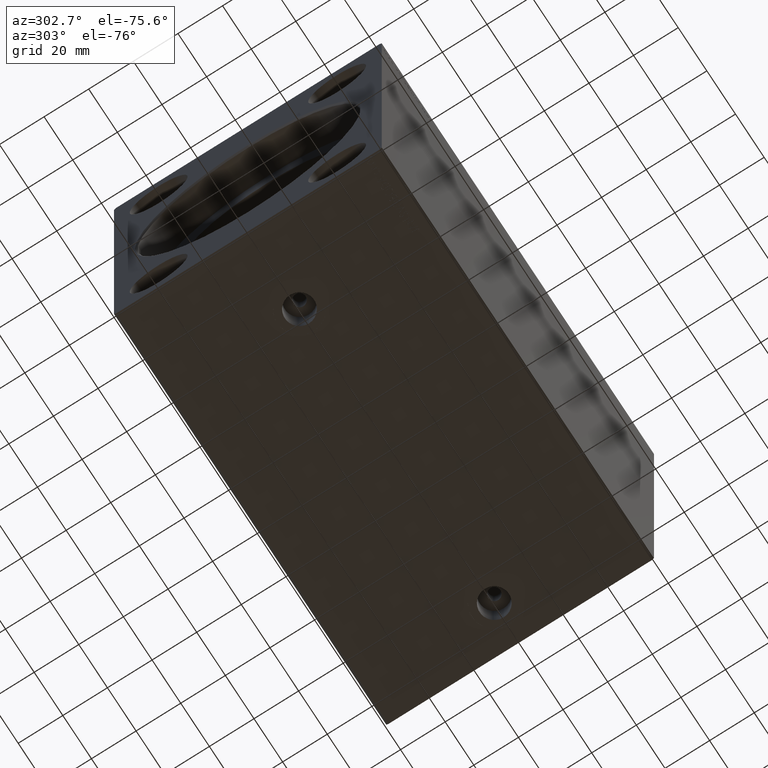
[diagram: clean part render]
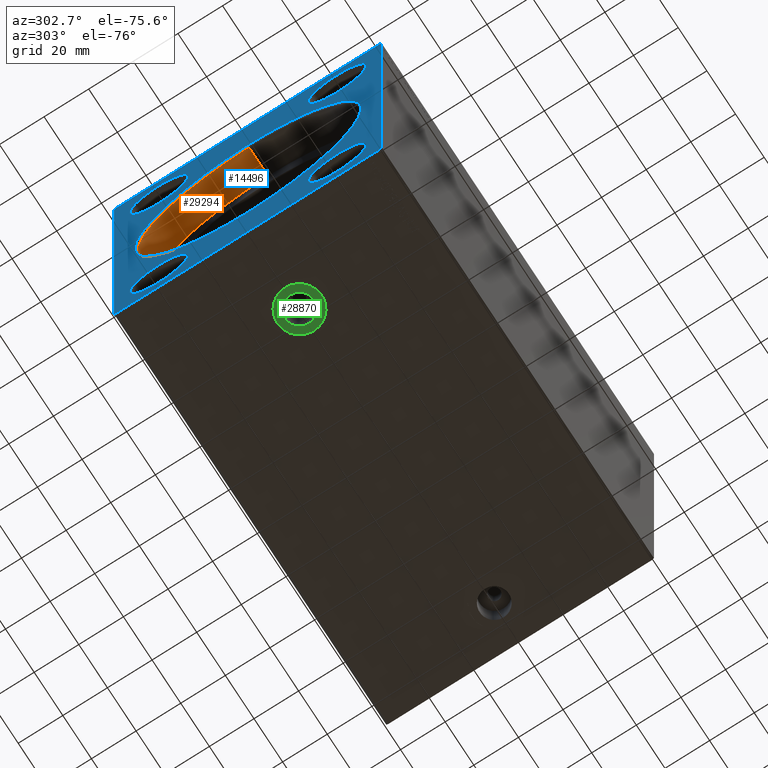
[diagram: same view with three faces highlighted in distinct colors, each labeled with its STEP entity id]
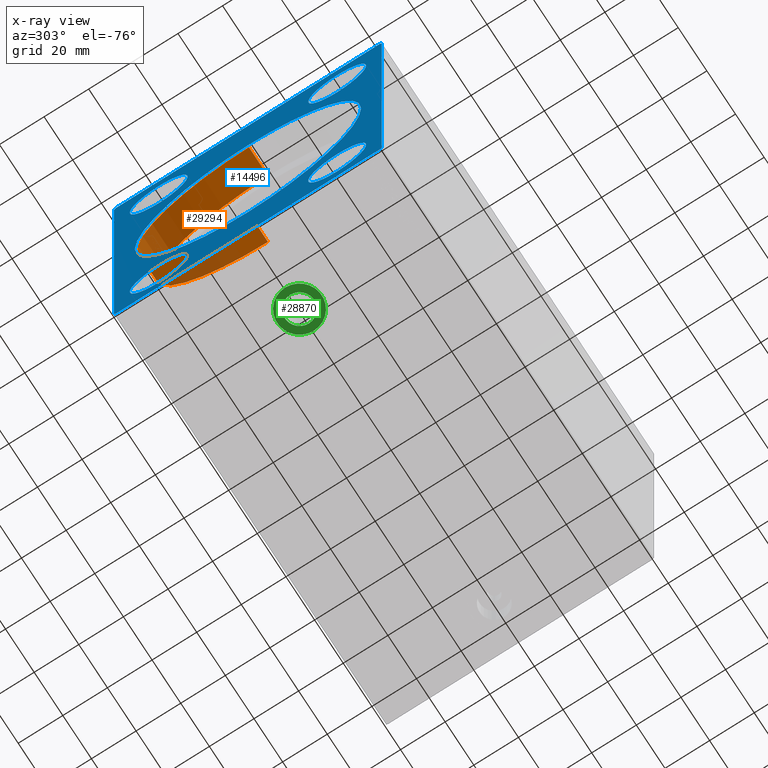
[diagram: x-ray of the same camera — body ghosted, the three highlighted faces saturated]
A machine part, auxiliary view with three faces highlighted in distinct colors.
The next image is the same camera in x-ray (body ghosted, the three faces saturated) — at least one of them is partly hidden behind the body in this view.
Their STEP definitions:

[orange] entity #29294 — the highlighted cylindrical surface (partial cylindrical patch) has radius 50 mm, axis along (-1, -0, -0).
#4177 = AXIS2_PLACEMENT_3D ( 'NONE', #25122, #41657, #8784 ) ;
#6242 = AXIS2_PLACEMENT_3D ( 'NONE', #8359, #38013, #15886 ) ;
#7658 = CARTESIAN_POINT ( 'NONE',  ( 0.6999999999999992895, 6.123233995736766085E-15, -50.00000000000000000 ) ) ;
#7964 = DIRECTION ( 'NONE',  ( -1.000000000000000000, 0.000000000000000000, 0.000000000000000000 ) ) ;
#8359 = CARTESIAN_POINT ( 'NONE',  ( 0.6999999999999992895, 0.000000000000000000, 0.000000000000000000 ) ) ;
#8761 = CARTESIAN_POINT ( 'NONE',  ( 14.00000000000000000, 6.123233995736766085E-15, -50.00000000000000000 ) ) ;
#8784 = DIRECTION ( 'NONE',  ( 0.000000000000000000, 0.000000000000000000, 1.000000000000000000 ) ) ;
#8843 = CARTESIAN_POINT ( 'NONE',  ( 14.00000000000000000, 6.123233995736766085E-15, -50.00000000000000000 ) ) ;
#14068 = VERTEX_POINT ( 'NONE', #38146 ) ;
#14689 = CARTESIAN_POINT ( 'NONE',  ( 14.00000000000000000, 0.000000000000000000, 50.00000000000000000 ) ) ;
#15243 = CYLINDRICAL_SURFACE ( 'NONE', #4177, 50.00000000000000000 ) ;
#15668 = FACE_OUTER_BOUND ( 'NONE', #26869, .T. ) ;
#15886 = DIRECTION ( 'NONE',  ( 0.000000000000000000, 0.000000000000000000, -1.000000000000000000 ) ) ;
#16205 = ORIENTED_EDGE ( 'NONE', *, *, #33286, .F. ) ;
#16239 = VERTEX_POINT ( 'NONE', #8761 ) ;
#16992 = DIRECTION ( 'NONE',  ( -1.000000000000000000, -0.000000000000000000, -0.000000000000000000 ) ) ;
#18571 = CARTESIAN_POINT ( 'NONE',  ( 0.6999999999999992895, 0.000000000000000000, 50.00000000000000000 ) ) ;
#19288 = CIRCLE ( 'NONE', #6242, 50.00000000000000000 ) ;
#21065 = VERTEX_POINT ( 'NONE', #7658 ) ;
#21446 = ORIENTED_EDGE ( 'NONE', *, *, #25747, .F. ) ;
#22213 = VERTEX_POINT ( 'NONE', #18571 ) ;
#23246 = EDGE_CURVE ( 'NONE', #14068, #22213, #40487, .T. ) ;
#23950 = DIRECTION ( 'NONE',  ( -1.000000000000000000, -0.000000000000000000, -0.000000000000000000 ) ) ;
#25122 = CARTESIAN_POINT ( 'NONE',  ( 14.00000000000000000, 0.000000000000000000, 0.000000000000000000 ) ) ;
#25178 = LINE ( 'NONE', #8843, #40498 ) ;
#25747 = EDGE_CURVE ( 'NONE', #16239, #21065, #25178, .T. ) ;
#26156 = AXIS2_PLACEMENT_3D ( 'NONE', #33794, #7964, #27341 ) ;
#26869 = EDGE_LOOP ( 'NONE', ( #21446, #16205, #33239, #34878 ) ) ;
#27341 = DIRECTION ( 'NONE',  ( 0.000000000000000000, 0.000000000000000000, 1.000000000000000000 ) ) ;
#29260 = EDGE_CURVE ( 'NONE', #22213, #21065, #19288, .T. ) ;
#29294 = ADVANCED_FACE ( 'NONE', ( #15668 ), #15243, .F. ) ;
#32902 = VECTOR ( 'NONE', #23950, 1000.000000000000000 ) ;
#33239 = ORIENTED_EDGE ( 'NONE', *, *, #23246, .T. ) ;
#33286 = EDGE_CURVE ( 'NONE', #14068, #16239, #34462, .T. ) ;
#33794 = CARTESIAN_POINT ( 'NONE',  ( 14.00000000000000000, 0.000000000000000000, 0.000000000000000000 ) ) ;
#34462 = CIRCLE ( 'NONE', #26156, 50.00000000000000000 ) ;
#34878 = ORIENTED_EDGE ( 'NONE', *, *, #29260, .T. ) ;
#38013 = DIRECTION ( 'NONE',  ( -1.000000000000000000, 0.000000000000000000, 0.000000000000000000 ) ) ;
#38146 = CARTESIAN_POINT ( 'NONE',  ( 14.00000000000000000, 0.000000000000000000, 50.00000000000000000 ) ) ;
#40487 = LINE ( 'NONE', #14689, #32902 ) ;
#40498 = VECTOR ( 'NONE', #16992, 1000.000000000000000 ) ;
#41657 = DIRECTION ( 'NONE',  ( -1.000000000000000000, -0.000000000000000000, -0.000000000000000000 ) ) ;

[blue] entity #14496 — the highlighted planar face has unit normal (1, 0, 0).
#44 = VERTEX_POINT ( 'NONE', #40766 ) ;
#814 = CARTESIAN_POINT ( 'NONE',  ( 0.000000000000000000, -39.99999999999999289, -59.99999999999999289 ) ) ;
#1034 = EDGE_CURVE ( 'NONE', #26613, #17957, #18048, .T. ) ;
#1849 = CIRCLE ( 'NONE', #23118, 12.99999999999999112 ) ;
#2084 = ORIENTED_EDGE ( 'NONE', *, *, #41011, .F. ) ;
#2271 = CARTESIAN_POINT ( 'NONE',  ( 0.000000000000000000, 6.208959271677078796E-15, -50.69999999999999574 ) ) ;
#2746 = EDGE_CURVE ( 'NONE', #23077, #5207, #26099, .T. ) ;
#2938 = EDGE_CURVE ( 'NONE', #12563, #6441, #25710, .T. ) ;
#2958 = CARTESIAN_POINT ( 'NONE',  ( 0.000000000000000000, 0.000000000000000000, 0.000000000000000000 ) ) ;
#4116 = DIRECTION ( 'NONE',  ( 0.000000000000000000, 0.000000000000000000, 1.000000000000000000 ) ) ;
#4333 = AXIS2_PLACEMENT_3D ( 'NONE', #15793, #9338, #14362 ) ;
#4878 = CARTESIAN_POINT ( 'NONE',  ( 0.000000000000000000, 40.00000000000000711, 73.00000000000002842 ) ) ;
#5207 = VERTEX_POINT ( 'NONE', #10925 ) ;
#5262 = CARTESIAN_POINT ( 'NONE',  ( 0.000000000000000000, -59.00000000000001421, 79.99999999999998579 ) ) ;
#5603 = CARTESIAN_POINT ( 'NONE',  ( 0.000000000000000000, -39.99999999999999289, -47.00000000000000000 ) ) ;
#5609 = DIRECTION ( 'NONE',  ( 0.000000000000000000, 0.000000000000000000, 1.000000000000000000 ) ) ;
#5884 = CARTESIAN_POINT ( 'NONE',  ( 0.000000000000000000, -59.00000000000001421, 79.99999999999998579 ) ) ;
#6082 = DIRECTION ( 'NONE',  ( 0.000000000000000000, 0.000000000000000000, 1.000000000000000000 ) ) ;
#6318 = CARTESIAN_POINT ( 'NONE',  ( 0.000000000000000000, 40.00000000000000711, -47.00000000000000000 ) ) ;
#6363 = ORIENTED_EDGE ( 'NONE', *, *, #40813, .F. ) ;
#6441 = VERTEX_POINT ( 'NONE', #31944 ) ;
#6903 = CIRCLE ( 'NONE', #36518, 50.69999999999999574 ) ;
#6910 = ORIENTED_EDGE ( 'NONE', *, *, #16671, .F. ) ;
#7300 = VECTOR ( 'NONE', #40196, 1000.000000000000114 ) ;
#7456 = CIRCLE ( 'NONE', #36971, 13.00000000000000533 ) ;
#7788 = VECTOR ( 'NONE', #33190, 1000.000000000000114 ) ;
#8067 = CARTESIAN_POINT ( 'NONE',  ( 0.000000000000000000, -39.99999999999999289, -59.99999999999999289 ) ) ;
#8713 = VERTEX_POINT ( 'NONE', #32379 ) ;
#8738 = CARTESIAN_POINT ( 'NONE',  ( 0.000000000000000000, 59.00000000000000000, -80.00000000000000000 ) ) ;
#9142 = LINE ( 'NONE', #5262, #42317 ) ;
#9151 = ORIENTED_EDGE ( 'NONE', *, *, #25648, .F. ) ;
#9171 = FACE_BOUND ( 'NONE', #22208, .T. ) ;
#9338 = DIRECTION ( 'NONE',  ( 1.000000000000000000, -0.000000000000000000, -0.000000000000000000 ) ) ;
#9928 = DIRECTION ( 'NONE',  ( 0.000000000000000000, 0.000000000000000000, -1.000000000000000000 ) ) ;
#9963 = DIRECTION ( 'NONE',  ( 0.000000000000000000, 0.000000000000000000, -1.000000000000000000 ) ) ;
#10365 = CARTESIAN_POINT ( 'NONE',  ( 0.000000000000000000, 40.00000000000000711, -59.99999999999999289 ) ) ;
#10507 = CARTESIAN_POINT ( 'NONE',  ( 0.000000000000000000, -60.00000000000002132, 78.99999999999998579 ) ) ;
#10730 = ORIENTED_EDGE ( 'NONE', *, *, #1034, .T. ) ;
#10841 = VECTOR ( 'NONE', #20189, 1000.000000000000000 ) ;
#10925 = CARTESIAN_POINT ( 'NONE',  ( 0.000000000000000000, 58.99999999999998579, 80.00000000000000000 ) ) ;
#11050 = CIRCLE ( 'NONE', #34375, 50.69999999999999574 ) ;
#11092 = DIRECTION ( 'NONE',  ( 0.000000000000000000, 0.000000000000000000, -1.000000000000000000 ) ) ;
#12065 = CARTESIAN_POINT ( 'NONE',  ( 0.000000000000000000, -39.99999999999999289, 60.00000000000002132 ) ) ;
#12282 = DIRECTION ( 'NONE',  ( -1.000000000000000000, 0.000000000000000000, 0.000000000000000000 ) ) ;
#12509 = LINE ( 'NONE', #38931, #39140 ) ;
#12563 = VERTEX_POINT ( 'NONE', #28055 ) ;
#12637 = DIRECTION ( 'NONE',  ( 1.000000000000000000, 0.000000000000000000, 0.000000000000000000 ) ) ;
#13176 = ORIENTED_EDGE ( 'NONE', *, *, #2746, .F. ) ;
#13398 = VERTEX_POINT ( 'NONE', #29135 ) ;
#13769 = EDGE_CURVE ( 'NONE', #17134, #25236, #29368, .T. ) ;
#13964 = LINE ( 'NONE', #27912, #31474 ) ;
#14094 = DIRECTION ( 'NONE',  ( 0.000000000000000000, 0.000000000000000000, -1.000000000000000000 ) ) ;
#14320 = DIRECTION ( 'NONE',  ( 0.000000000000000000, 1.000000000000000000, 0.000000000000000000 ) ) ;
#14362 = DIRECTION ( 'NONE',  ( 0.000000000000000000, 0.000000000000000000, -1.000000000000000000 ) ) ;
#14496 = ADVANCED_FACE ( 'NONE', ( #25951, #29394, #31977, #42488, #15622, #9171 ), #27002, .F. ) ;
#14744 = VERTEX_POINT ( 'NONE', #5884 ) ;
#15345 = EDGE_CURVE ( 'NONE', #38272, #13398, #32905, .T. ) ;
#15427 = DIRECTION ( 'NONE',  ( 0.000000000000000000, 0.7071067811865450192, -0.7071067811865500152 ) ) ;
#15622 = FACE_BOUND ( 'NONE', #21479, .T. ) ;
#15675 = AXIS2_PLACEMENT_3D ( 'NONE', #39370, #16382, #9928 ) ;
#15793 = CARTESIAN_POINT ( 'NONE',  ( 0.000000000000000000, 40.00000000000000711, 60.00000000000002132 ) ) ;
#15980 = CARTESIAN_POINT ( 'NONE',  ( 0.000000000000000000, -39.99999999999999289, 60.00000000000002132 ) ) ;
#16382 = DIRECTION ( 'NONE',  ( 1.000000000000000000, -0.000000000000000000, -0.000000000000000000 ) ) ;
#16513 = ORIENTED_EDGE ( 'NONE', *, *, #31435, .F. ) ;
#16538 = EDGE_CURVE ( 'NONE', #40892, #34157, #1849, .T. ) ;
#16671 = EDGE_CURVE ( 'NONE', #14744, #38272, #9142, .T. ) ;
#16882 = EDGE_LOOP ( 'NONE', ( #27597, #33028 ) ) ;
#16894 = CARTESIAN_POINT ( 'NONE',  ( 0.000000000000000000, 0.000000000000000000, 0.000000000000000000 ) ) ;
#17043 = EDGE_CURVE ( 'NONE', #8713, #34117, #28321, .T. ) ;
#17134 = VERTEX_POINT ( 'NONE', #6318 ) ;
#17927 = CARTESIAN_POINT ( 'NONE',  ( 0.000000000000000000, 0.000000000000000000, 50.69999999999999574 ) ) ;
#17957 = VERTEX_POINT ( 'NONE', #4878 ) ;
#18048 = CIRCLE ( 'NONE', #4333, 13.00000000000001066 ) ;
#18661 = LINE ( 'NONE', #32219, #22557 ) ;
#19837 = DIRECTION ( 'NONE',  ( -1.000000000000000000, 0.000000000000000000, 0.000000000000000000 ) ) ;
#19865 = CIRCLE ( 'NONE', #40429, 12.99999999999999112 ) ;
#20066 = DIRECTION ( 'NONE',  ( 1.000000000000000000, 0.000000000000000000, 0.000000000000000000 ) ) ;
#20189 = DIRECTION ( 'NONE',  ( 0.000000000000000000, 1.317511500741878924E-16, -1.000000000000000000 ) ) ;
#20250 = ORIENTED_EDGE ( 'NONE', *, *, #42296, .T. ) ;
#20358 = EDGE_LOOP ( 'NONE', ( #26289, #41473 ) ) ;
#20421 = AXIS2_PLACEMENT_3D ( 'NONE', #10365, #19837, #4116 ) ;
#20837 = EDGE_CURVE ( 'NONE', #34117, #23077, #13964, .T. ) ;
#21075 = ORIENTED_EDGE ( 'NONE', *, *, #17043, .F. ) ;
#21191 = DIRECTION ( 'NONE',  ( 0.000000000000000000, 0.000000000000000000, -1.000000000000000000 ) ) ;
#21479 = EDGE_LOOP ( 'NONE', ( #20250, #23796 ) ) ;
#21600 = EDGE_CURVE ( 'NONE', #6441, #12563, #7456, .T. ) ;
#21611 = DIRECTION ( 'NONE',  ( 1.000000000000000000, -0.000000000000000000, -0.000000000000000000 ) ) ;
#22208 = EDGE_LOOP ( 'NONE', ( #30149, #10730 ) ) ;
#22557 = VECTOR ( 'NONE', #15427, 1000.000000000000000 ) ;
#22860 = DIRECTION ( 'NONE',  ( -1.000000000000000000, 0.000000000000000000, 0.000000000000000000 ) ) ;
#23077 = VERTEX_POINT ( 'NONE', #38578 ) ;
#23118 = AXIS2_PLACEMENT_3D ( 'NONE', #814, #40119, #21191 ) ;
#23605 = CARTESIAN_POINT ( 'NONE',  ( 0.000000000000000000, -60.00000000000002132, 78.99999999999998579 ) ) ;
#23796 = ORIENTED_EDGE ( 'NONE', *, *, #16538, .T. ) ;
#25236 = VERTEX_POINT ( 'NONE', #35762 ) ;
#25648 = EDGE_CURVE ( 'NONE', #5207, #14744, #12509, .T. ) ;
#25710 = CIRCLE ( 'NONE', #26385, 13.00000000000000533 ) ;
#25951 = FACE_BOUND ( 'NONE', #20358, .T. ) ;
#26099 = LINE ( 'NONE', #39201, #7788 ) ;
#26282 = ORIENTED_EDGE ( 'NONE', *, *, #13769, .F. ) ;
#26289 = ORIENTED_EDGE ( 'NONE', *, *, #2938, .F. ) ;
#26370 = DIRECTION ( 'NONE',  ( 1.000000000000000000, 0.000000000000000000, 0.000000000000000000 ) ) ;
#26385 = AXIS2_PLACEMENT_3D ( 'NONE', #12065, #12282, #5609 ) ;
#26613 = VERTEX_POINT ( 'NONE', #26689 ) ;
#26689 = CARTESIAN_POINT ( 'NONE',  ( 0.000000000000000000, 40.00000000000000711, 47.00000000000000711 ) ) ;
#26708 = VECTOR ( 'NONE', #14320, 1000.000000000000000 ) ;
#27002 = PLANE ( 'NONE',  #27991 ) ;
#27597 = ORIENTED_EDGE ( 'NONE', *, *, #32275, .T. ) ;
#27912 = CARTESIAN_POINT ( 'NONE',  ( 0.000000000000000000, 60.00000000000000000, -79.00000000000000000 ) ) ;
#27991 = AXIS2_PLACEMENT_3D ( 'NONE', #16894, #26370, #14094 ) ;
#28055 = CARTESIAN_POINT ( 'NONE',  ( 0.000000000000000000, -39.99999999999999289, 73.00000000000002842 ) ) ;
#28321 = LINE ( 'NONE', #8738, #7300 ) ;
#28719 = VERTEX_POINT ( 'NONE', #17927 ) ;
#28853 = EDGE_CURVE ( 'NONE', #41059, #28719, #11050, .T. ) ;
#29135 = CARTESIAN_POINT ( 'NONE',  ( 0.000000000000000000, -60.00000000000000000, -79.00000000000001421 ) ) ;
#29190 = DIRECTION ( 'NONE',  ( 0.000000000000000000, 0.000000000000000000, -1.000000000000000000 ) ) ;
#29368 = CIRCLE ( 'NONE', #20421, 12.99999999999999112 ) ;
#29394 = FACE_BOUND ( 'NONE', #31601, .T. ) ;
#29958 = CARTESIAN_POINT ( 'NONE',  ( 0.000000000000000000, 0.000000000000000000, 0.000000000000000000 ) ) ;
#30080 = DIRECTION ( 'NONE',  ( 0.000000000000000000, 0.000000000000000000, 1.000000000000000000 ) ) ;
#30149 = ORIENTED_EDGE ( 'NONE', *, *, #39571, .T. ) ;
#30328 = AXIS2_PLACEMENT_3D ( 'NONE', #33515, #33721, #30080 ) ;
#30657 = CARTESIAN_POINT ( 'NONE',  ( 0.000000000000000000, -59.00000000000001421, -80.00000000000000000 ) ) ;
#31196 = ORIENTED_EDGE ( 'NONE', *, *, #15345, .F. ) ;
#31435 = EDGE_CURVE ( 'NONE', #25236, #17134, #33763, .T. ) ;
#31474 = VECTOR ( 'NONE', #33540, 1000.000000000000000 ) ;
#31601 = EDGE_LOOP ( 'NONE', ( #26282, #16513 ) ) ;
#31654 = DIRECTION ( 'NONE',  ( 0.000000000000000000, -1.000000000000000000, -1.176083712526648949E-16 ) ) ;
#31944 = CARTESIAN_POINT ( 'NONE',  ( 0.000000000000000000, -39.99999999999999289, 47.00000000000000711 ) ) ;
#31977 = FACE_BOUND ( 'NONE', #16882, .T. ) ;
#32016 = ORIENTED_EDGE ( 'NONE', *, *, #20837, .F. ) ;
#32141 = CIRCLE ( 'NONE', #15675, 13.00000000000001066 ) ;
#32219 = CARTESIAN_POINT ( 'NONE',  ( 0.000000000000000000, -60.00000000000000000, -79.00000000000001421 ) ) ;
#32275 = EDGE_CURVE ( 'NONE', #28719, #41059, #6903, .T. ) ;
#32379 = CARTESIAN_POINT ( 'NONE',  ( 0.000000000000000000, 59.00000000000000000, -80.00000000000000000 ) ) ;
#32905 = LINE ( 'NONE', #10507, #10841 ) ;
#33028 = ORIENTED_EDGE ( 'NONE', *, *, #28853, .T. ) ;
#33190 = DIRECTION ( 'NONE',  ( 0.000000000000000000, -0.7071067811865474617, 0.7071067811865474617 ) ) ;
#33515 = CARTESIAN_POINT ( 'NONE',  ( 0.000000000000000000, 40.00000000000000711, -59.99999999999999289 ) ) ;
#33540 = DIRECTION ( 'NONE',  ( 0.000000000000000000, -8.783410004945858675E-17, 1.000000000000000000 ) ) ;
#33721 = DIRECTION ( 'NONE',  ( -1.000000000000000000, 0.000000000000000000, 0.000000000000000000 ) ) ;
#33763 = CIRCLE ( 'NONE', #30328, 12.99999999999999112 ) ;
#34117 = VERTEX_POINT ( 'NONE', #37845 ) ;
#34157 = VERTEX_POINT ( 'NONE', #5603 ) ;
#34375 = AXIS2_PLACEMENT_3D ( 'NONE', #29958, #20066, #9963 ) ;
#34950 = DIRECTION ( 'NONE',  ( 0.000000000000000000, -0.7071067811865474617, -0.7071067811865474617 ) ) ;
#35762 = CARTESIAN_POINT ( 'NONE',  ( 0.000000000000000000, 40.00000000000000711, -72.99999999999998579 ) ) ;
#36518 = AXIS2_PLACEMENT_3D ( 'NONE', #2958, #12637, #29190 ) ;
#36971 = AXIS2_PLACEMENT_3D ( 'NONE', #15980, #22860, #6082 ) ;
#37302 = LINE ( 'NONE', #30657, #26708 ) ;
#37845 = CARTESIAN_POINT ( 'NONE',  ( 0.000000000000000000, 60.00000000000000000, -79.00000000000000000 ) ) ;
#38272 = VERTEX_POINT ( 'NONE', #23605 ) ;
#38578 = CARTESIAN_POINT ( 'NONE',  ( 0.000000000000000000, 59.99999999999998579, 79.00000000000000000 ) ) ;
#38931 = CARTESIAN_POINT ( 'NONE',  ( 0.000000000000000000, 58.99999999999998579, 80.00000000000000000 ) ) ;
#39140 = VECTOR ( 'NONE', #31654, 1000.000000000000000 ) ;
#39201 = CARTESIAN_POINT ( 'NONE',  ( 0.000000000000000000, 59.99999999999998579, 79.00000000000000000 ) ) ;
#39370 = CARTESIAN_POINT ( 'NONE',  ( 0.000000000000000000, 40.00000000000000711, 60.00000000000002132 ) ) ;
#39571 = EDGE_CURVE ( 'NONE', #17957, #26613, #32141, .T. ) ;
#40119 = DIRECTION ( 'NONE',  ( 1.000000000000000000, -0.000000000000000000, -0.000000000000000000 ) ) ;
#40196 = DIRECTION ( 'NONE',  ( 0.000000000000000000, 0.7071067811865474617, 0.7071067811865474617 ) ) ;
#40387 = EDGE_LOOP ( 'NONE', ( #13176, #32016, #21075, #2084, #6363, #31196, #6910, #9151 ) ) ;
#40429 = AXIS2_PLACEMENT_3D ( 'NONE', #8067, #21611, #11092 ) ;
#40766 = CARTESIAN_POINT ( 'NONE',  ( 0.000000000000000000, -59.00000000000001421, -80.00000000000000000 ) ) ;
#40813 = EDGE_CURVE ( 'NONE', #13398, #44, #18661, .T. ) ;
#40892 = VERTEX_POINT ( 'NONE', #42286 ) ;
#41011 = EDGE_CURVE ( 'NONE', #44, #8713, #37302, .T. ) ;
#41059 = VERTEX_POINT ( 'NONE', #2271 ) ;
#41473 = ORIENTED_EDGE ( 'NONE', *, *, #21600, .F. ) ;
#42286 = CARTESIAN_POINT ( 'NONE',  ( 0.000000000000000000, -39.99999999999999289, -72.99999999999998579 ) ) ;
#42296 = EDGE_CURVE ( 'NONE', #34157, #40892, #19865, .T. ) ;
#42317 = VECTOR ( 'NONE', #34950, 1000.000000000000114 ) ;
#42488 = FACE_OUTER_BOUND ( 'NONE', #40387, .T. ) ;

[green] entity #28870 — the highlighted planar face has unit normal (0, 0, -1).
#1649 = DIRECTION ( 'NONE',  ( -1.000000000000000000, 0.000000000000000000, 0.000000000000000000 ) ) ;
#3716 = DIRECTION ( 'NONE',  ( -1.000000000000000000, 0.000000000000000000, -0.000000000000000000 ) ) ;
#4198 = AXIS2_PLACEMENT_3D ( 'NONE', #37528, #31108, #1649 ) ;
#6547 = VERTEX_POINT ( 'NONE', #21530 ) ;
#7117 = CARTESIAN_POINT ( 'NONE',  ( 42.57999999999999829, -8.798830181519818043E-15, -79.90000000000000568 ) ) ;
#9382 = CARTESIAN_POINT ( 'NONE',  ( 36.00000000000000000, -9.604647775358777085E-15, -79.90000000000000568 ) ) ;
#9758 = PLANE ( 'NONE',  #35764 ) ;
#9841 = DIRECTION ( 'NONE',  ( 0.000000000000000000, 0.000000000000000000, -1.000000000000000000 ) ) ;
#10161 = CIRCLE ( 'NONE', #21097, 10.00000000000000178 ) ;
#10175 = FACE_BOUND ( 'NONE', #37778, .T. ) ;
#11851 = ORIENTED_EDGE ( 'NONE', *, *, #37431, .F. ) ;
#16361 = EDGE_CURVE ( 'NONE', #41598, #40225, #36814, .T. ) ;
#16918 = ORIENTED_EDGE ( 'NONE', *, *, #34612, .T. ) ;
#17909 = ORIENTED_EDGE ( 'NONE', *, *, #38989, .T. ) ;
#19323 = CIRCLE ( 'NONE', #4198, 10.00000000000000178 ) ;
#19648 = DIRECTION ( 'NONE',  ( 0.000000000000000000, 0.000000000000000000, -1.000000000000000000 ) ) ;
#21097 = AXIS2_PLACEMENT_3D ( 'NONE', #9382, #41834, #25730 ) ;
#21530 = CARTESIAN_POINT ( 'NONE',  ( 46.00000000000000000, -8.380000976211422448E-15, -79.90000000000000568 ) ) ;
#25730 = DIRECTION ( 'NONE',  ( -1.000000000000000000, 0.000000000000000000, 0.000000000000000000 ) ) ;
#28514 = DIRECTION ( 'NONE',  ( -1.000000000000000000, 0.000000000000000000, 0.000000000000000000 ) ) ;
#28870 = ADVANCED_FACE ( 'NONE', ( #10175, #29750 ), #9758, .T. ) ;
#29008 = CARTESIAN_POINT ( 'NONE',  ( 25.99999999999999645, -9.604647775358777085E-15, -79.90000000000000568 ) ) ;
#29264 = VERTEX_POINT ( 'NONE', #29008 ) ;
#29696 = ORIENTED_EDGE ( 'NONE', *, *, #16361, .F. ) ;
#29750 = FACE_OUTER_BOUND ( 'NONE', #37941, .T. ) ;
#31108 = DIRECTION ( 'NONE',  ( 0.000000000000000000, 0.000000000000000000, -1.000000000000000000 ) ) ;
#33388 = CARTESIAN_POINT ( 'NONE',  ( 0.000000000000000000, 0.000000000000000000, -79.90000000000000568 ) ) ;
#34612 = EDGE_CURVE ( 'NONE', #29264, #6547, #19323, .T. ) ;
#35383 = DIRECTION ( 'NONE',  ( 0.000000000000000000, 0.000000000000000000, -1.000000000000000000 ) ) ;
#35764 = AXIS2_PLACEMENT_3D ( 'NONE', #33388, #19648, #3716 ) ;
#36160 = AXIS2_PLACEMENT_3D ( 'NONE', #39286, #9841, #39072 ) ;
#36207 = CIRCLE ( 'NONE', #38243, 6.580000000000002736 ) ;
#36814 = CIRCLE ( 'NONE', #36160, 6.580000000000002736 ) ;
#37431 = EDGE_CURVE ( 'NONE', #40225, #41598, #36207, .T. ) ;
#37528 = CARTESIAN_POINT ( 'NONE',  ( 36.00000000000000000, -9.604647775358777085E-15, -79.90000000000000568 ) ) ;
#37778 = EDGE_LOOP ( 'NONE', ( #11851, #29696 ) ) ;
#37941 = EDGE_LOOP ( 'NONE', ( #16918, #17909 ) ) ;
#38243 = AXIS2_PLACEMENT_3D ( 'NONE', #38597, #35383, #28514 ) ;
#38597 = CARTESIAN_POINT ( 'NONE',  ( 36.00000000000000000, -9.604647775358777085E-15, -79.90000000000000568 ) ) ;
#38989 = EDGE_CURVE ( 'NONE', #6547, #29264, #10161, .T. ) ;
#39072 = DIRECTION ( 'NONE',  ( -1.000000000000000000, 0.000000000000000000, 0.000000000000000000 ) ) ;
#39286 = CARTESIAN_POINT ( 'NONE',  ( 36.00000000000000000, -9.604647775358777085E-15, -79.90000000000000568 ) ) ;
#40225 = VERTEX_POINT ( 'NONE', #40474 ) ;
#40474 = CARTESIAN_POINT ( 'NONE',  ( 29.41999999999999460, -9.604647775358777085E-15, -79.90000000000000568 ) ) ;
#41598 = VERTEX_POINT ( 'NONE', #7117 ) ;
#41834 = DIRECTION ( 'NONE',  ( 0.000000000000000000, 0.000000000000000000, -1.000000000000000000 ) ) ;